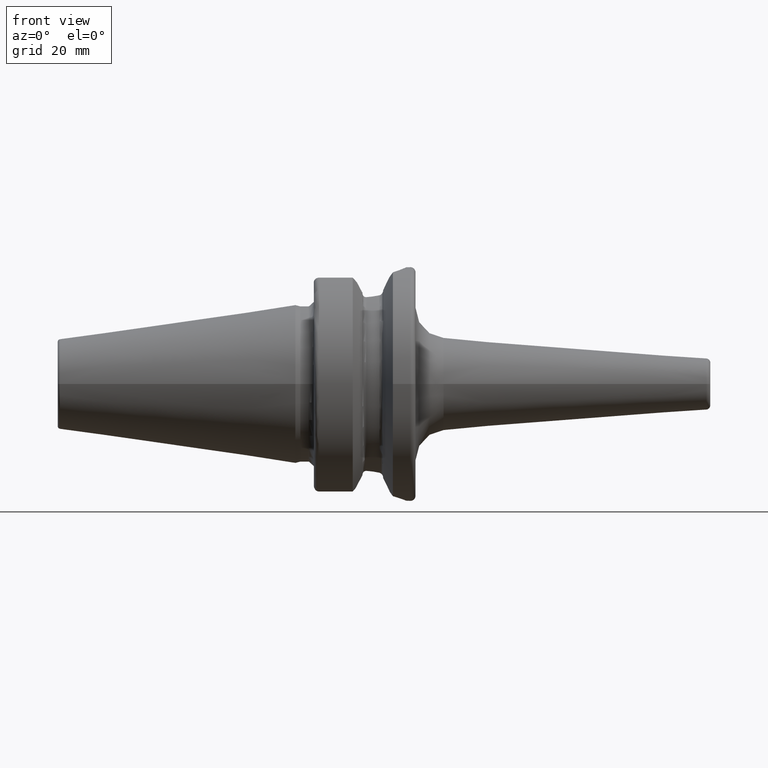
[diagram: clean part render]
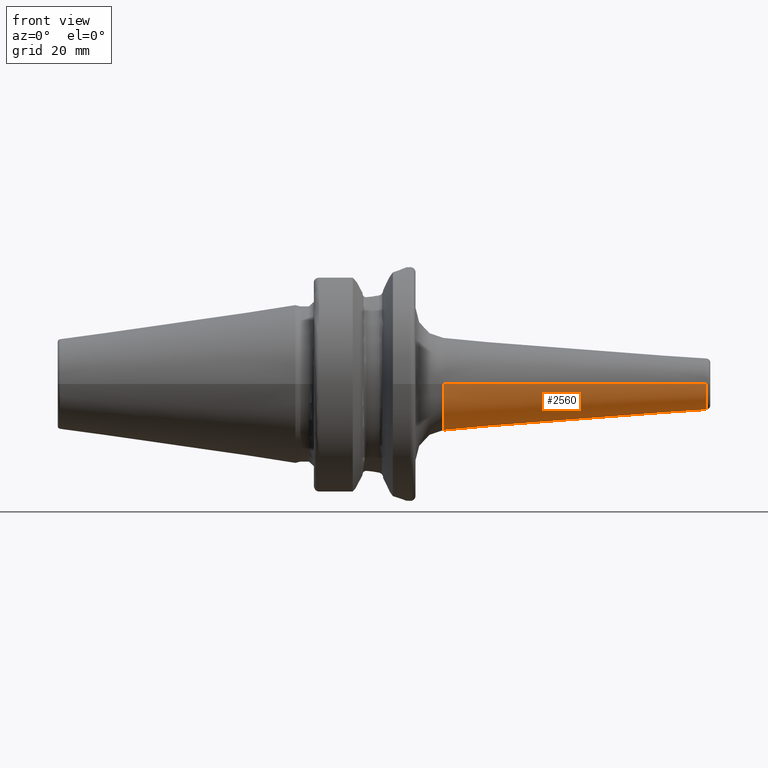
[diagram: same view with one face highlighted and labeled with its STEP entity id]
A machine part, front view. The second image highlights one B-rep face of the part: STEP entity #2560.
In plain terms, the highlighted conical surface has half-angle 4.5 deg.
Its self-contained STEP definition (entity closure, byte-faithful):
#862=CARTESIAN_POINT('',(7.926276727658E1,0.E0,0.E0));
#863=DIRECTION('',(-1.E0,0.E0,0.E0));
#864=DIRECTION('',(0.E0,1.E0,0.E0));
#865=AXIS2_PLACEMENT_3D('',#862,#863,#864);
#867=DIRECTION('',(-9.969173337331E-1,7.845909572785E-2,7.870237940416E-13));
#868=VECTOR('',#867,5.189349216873E1);
#869=CARTESIAN_POINT('',(7.926276727659E1,5.058021473660E0,
-3.276499464409E-11));
#870=LINE('',#869,#868);
#871=CARTESIAN_POINT('',(2.752924542563E1,0.E0,0.E0));
#872=DIRECTION('',(1.E0,0.E0,0.E0));
#873=DIRECTION('',(0.E0,-1.E0,0.E0));
#874=AXIS2_PLACEMENT_3D('',#871,#872,#873);
#876=DIRECTION('',(-9.969173337331E-1,-7.845909572785E-2,-7.869871306644E-13));
#877=VECTOR('',#876,5.189349216873E1);
#878=CARTESIAN_POINT('',(7.926276727659E1,-5.058021473660E0,
3.276483176005E-11));
#879=LINE('',#878,#877);
#1365=CARTESIAN_POINT('',(7.926276727658E1,5.058021473660E0,0.E0));
#1366=CARTESIAN_POINT('',(7.926276727658E1,-5.058021473660E0,0.E0));
#1367=VERTEX_POINT('',#1365);
#1368=VERTEX_POINT('',#1366);
#1377=CARTESIAN_POINT('',(2.752924542563E1,-9.129537943378E0,0.E0));
#1378=CARTESIAN_POINT('',(2.752924542563E1,9.129537943378E0,0.E0));
#1379=VERTEX_POINT('',#1377);
#1380=VERTEX_POINT('',#1378);
#2549=CARTESIAN_POINT('',(5.339600635111E1,0.E0,0.E0));
#2550=DIRECTION('',(-1.E0,0.E0,0.E0));
#2551=DIRECTION('',(0.E0,1.E0,0.E0));
#2552=AXIS2_PLACEMENT_3D('',#2549,#2550,#2551);
#2553=CONICAL_SURFACE('',#2552,7.093779708519E0,4.5E0);
#2554=ORIENTED_EDGE('',*,*,#2540,.F.);
#2555=ORIENTED_EDGE('',*,*,#2515,.T.);
#2556=ORIENTED_EDGE('',*,*,#2485,.F.);
#2557=ORIENTED_EDGE('',*,*,#2512,.F.);
#2558=EDGE_LOOP('',(#2554,#2555,#2556,#2557));
#2559=FACE_OUTER_BOUND('',#2558,.F.);
#2560=ADVANCED_FACE('',(#2559),#2553,.T.);
#866=CIRCLE('',#865,5.058021473660E0);
#875=CIRCLE('',#874,9.129537943378E0);
#2485=EDGE_CURVE('',#1379,#1380,#875,.T.);
#2512=EDGE_CURVE('',#1368,#1379,#879,.T.);
#2515=EDGE_CURVE('',#1367,#1380,#870,.T.);
#2540=EDGE_CURVE('',#1367,#1368,#866,.T.);